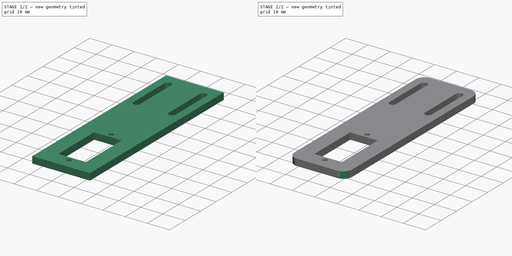
[diagram: build sequence overview — one tinted view per stage of 2, left to right]
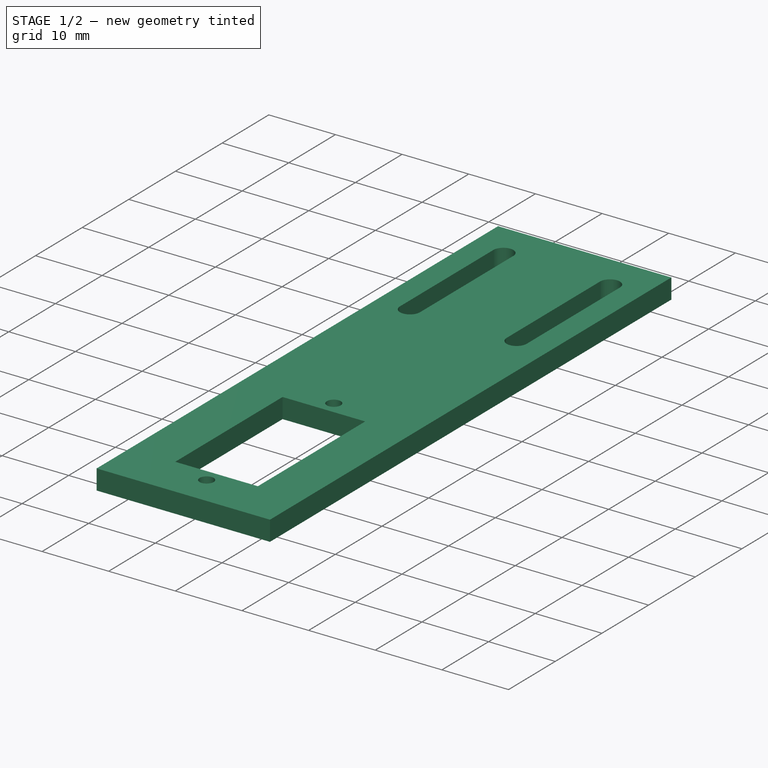
[diagram: stage 1 of 2 — iso view after this stage's code; geometry added in this stage tinted green]
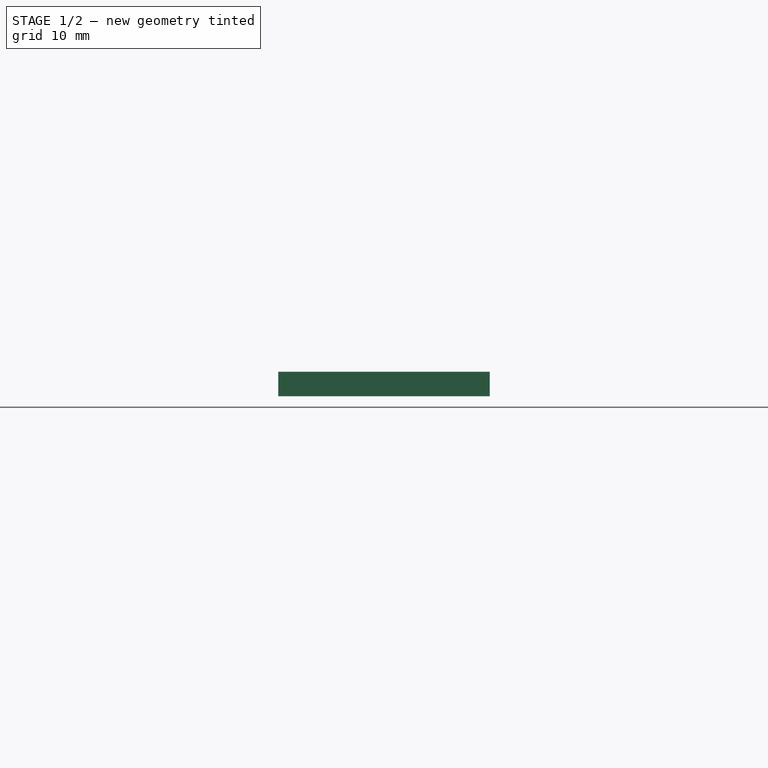
[diagram: stage 1 of 2 — front view after this stage's code; geometry added in this stage tinted green]
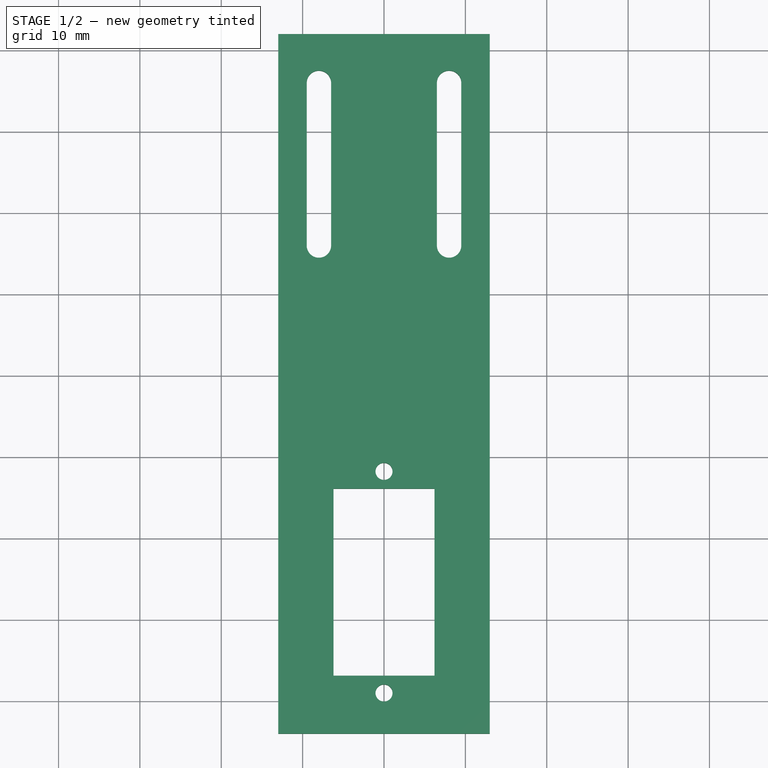
[diagram: stage 1 of 2 — top view after this stage's code; geometry added in this stage tinted green]
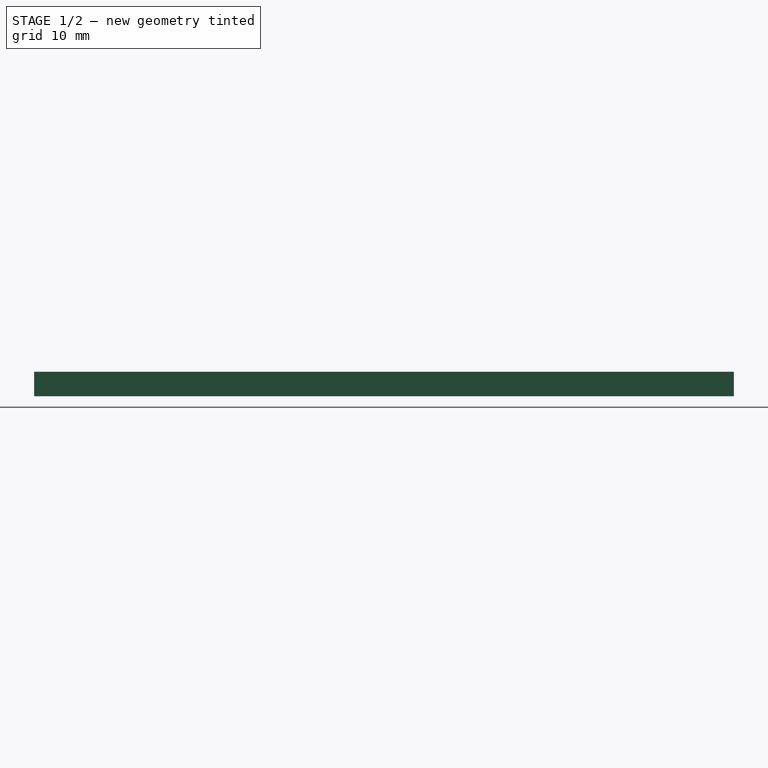
[diagram: stage 1 of 2 — right view after this stage's code; geometry added in this stage tinted green]
FCSTD DOCUMENT  (FreeCAD 0.18R16117 (Git))
Label: BaseJoint
License: All rights reserved
LicenseURL: http://en.wikipedia.org/wiki/All_rights_reserved
objects: Sketcher::SketchObject×1, PartDesign::Pad×1, PartDesign::Fillet×1, PartDesign::Body×1
note: 5 computed .brp shape members not serialized (recipe doc carries the construction recipe); baked Part::Feature solids carry a one-line shape summary decoded from their .brp

FEATURE [Sketcher::SketchObject] Sketch
  MapMode = 5
  Support = -> [XY_Plane]
  sketch-geometry (22):
    g0: LineSegment StartX=13 StartY=-50 StartZ=0 EndX=13 EndY=-74 EndZ=0
    g1: LineSegment StartX=13 StartY=-74 StartZ=0 EndX=-13 EndY=-74 EndZ=0
    g2: LineSegment StartX=-13 StartY=-74 StartZ=0 EndX=-13 EndY=-50 EndZ=0
    g3: LineSegment StartX=-13 StartY=12 StartZ=0 EndX=13 EndY=12 EndZ=0
    g4: LineSegment StartX=13 StartY=12 StartZ=0 EndX=13 EndY=-20 EndZ=0
    g5: LineSegment StartX=-13 StartY=-20 StartZ=0 EndX=-13 EndY=12 EndZ=0
    g6: LineSegment StartX=-6.2 StartY=-43.88 StartZ=0 EndX=6.2 EndY=-43.88 EndZ=0
    g7: LineSegment StartX=6.2 StartY=-43.88 StartZ=0 EndX=6.2 EndY=-66.88 EndZ=0
    g8: LineSegment StartX=6.2 StartY=-66.88 StartZ=0 EndX=-6.2 EndY=-66.88 EndZ=0
    g9: LineSegment StartX=-6.2 StartY=-66.88 StartZ=0 EndX=-6.2 EndY=-43.88 EndZ=0
    g10: Circle CenterX=0 CenterY=-41.76 CenterZ=0 NormalX=0 NormalY=0 NormalZ=1 AngleXU=0 Radius=1.05
    g11: LineSegment StartX=-13 StartY=-50 StartZ=0 EndX=-13 EndY=-20 EndZ=0
    g12: LineSegment StartX=13 StartY=-50 StartZ=0 EndX=13 EndY=-20 EndZ=0
    g13: Circle CenterX=0 CenterY=-69 CenterZ=0 NormalX=0 NormalY=0 NormalZ=1 AngleXU=0 Radius=1.05
    g14: ArcOfCircle CenterX=-8 CenterY=6 CenterZ=0 NormalX=0 NormalY=0 NormalZ=1 AngleXU=0 Radius=1.5 StartAngle=0 EndAngle=3.14159
    g15: ArcOfCircle CenterX=-8 CenterY=-14 CenterZ=0 NormalX=0 NormalY=0 NormalZ=1 AngleXU=0 Radius=1.5 StartAngle=3.14159 EndAngle=6.28319
    g16: LineSegment StartX=-9.5 StartY=6 StartZ=0 EndX=-9.5 EndY=-14 EndZ=0
    g17: LineSegment StartX=-6.5 StartY=6 StartZ=0 EndX=-6.5 EndY=-14 EndZ=0
    g18: ArcOfCircle CenterX=8 CenterY=6 CenterZ=0 NormalX=0 NormalY=0 NormalZ=1 AngleXU=0 Radius=1.5 StartAngle=0 EndAngle=3.14159
    g19: ArcOfCircle CenterX=8 CenterY=-14 CenterZ=0 NormalX=0 NormalY=0 NormalZ=1 AngleXU=0 Radius=1.5 StartAngle=3.14159 EndAngle=6.28319
    g20: LineSegment StartX=6.5 StartY=6 StartZ=0 EndX=6.5 EndY=-14 EndZ=0
    g21: LineSegment StartX=9.5 StartY=6 StartZ=0 EndX=9.5 EndY=-14 EndZ=0
  constraints (58):
    c: Coincident(g0,g1)
    c: Coincident(g1,g2)
    c: Horizontal(g1)
    c: Vertical(g0)
    c: Symmetric(g2,g0,g-2)
    c: Vertical(g2)
    c: Coincident(g3,g4)
    c: Coincident(g5,g3)
    c: Vertical(g4)
    c: Symmetric(g3,g3,g-2)
    c: DistanceY(g-1,g3) = 12
    c: DistanceX(g3,g3) = 26
    c: Coincident(g6,g7)
    c: Coincident(g7,g8)
    c: Coincident(g8,g9)
    c: Coincident(g9,g6)
    c: Horizontal(g6)
    c: Horizontal(g8)
    c: Vertical(g9)
    c: Diameter(g10) = 2.1
    c: DistanceX(g8,g8) = 12.4
    c: DistanceY(g9,g9) = 23
    c: DistanceX(g1,g1) = 26
    c: DistanceY(g1,g-1) = 74
    c: Coincident(g11,g2)
    c: Coincident(g12,g0)
    c: Coincident(g12,g4)
    c: Symmetric(g4,g5,g-2)
    c: Coincident(g5,g11)
    c: DistanceY(g4,g4) = 32
    c: DistanceY(g2,g2) = 24
    c: Vertical(g7)
    c: Equal(g10,g13) = 2.1
    c: Vertical(g10,g13)
    c: DistanceX(g8,g13) = 6.2
    c: DistanceY(g13,g10) = 27.24
    c: DistanceY(g13,g7) = 2.12
    c: PointOnObject(g13,g-2)
    c: DistanceY(g0,g13) = 5
    c: Tangent(g14,g17) = 1.5708
    c: Tangent(g14,g16) = -1.5708
    c: Tangent(g16,g15) = -1.5708
    c: Tangent(g17,g15) = 1.5708
    c: Vertical(g16)
    c: Equal(g14,g15)
    c: Tangent(g18,g21) = 1.5708
    c: Tangent(g18,g20) = -1.5708
    c: Tangent(g20,g19) = -1.5708
    c: Tangent(g21,g19) = 1.5708
    c: Vertical(g20)
    c: Equal(g18,g19)
    c: Symmetric(g14,g18,g-2)
    c: Equal(g14,g18)
    c: Diameter(g18) = 3
    c: DistanceX(g14,g18) = 16
    c: Horizontal(g15,g19)
    c: DistanceY(g14,g3) = 6
    c: DistanceY(g16,g16) = 20
FEATURE [PartDesign::Pad] Pad
  Length = 3
  Length2 = 100
  Profile = -> Sketch
  Type = 0
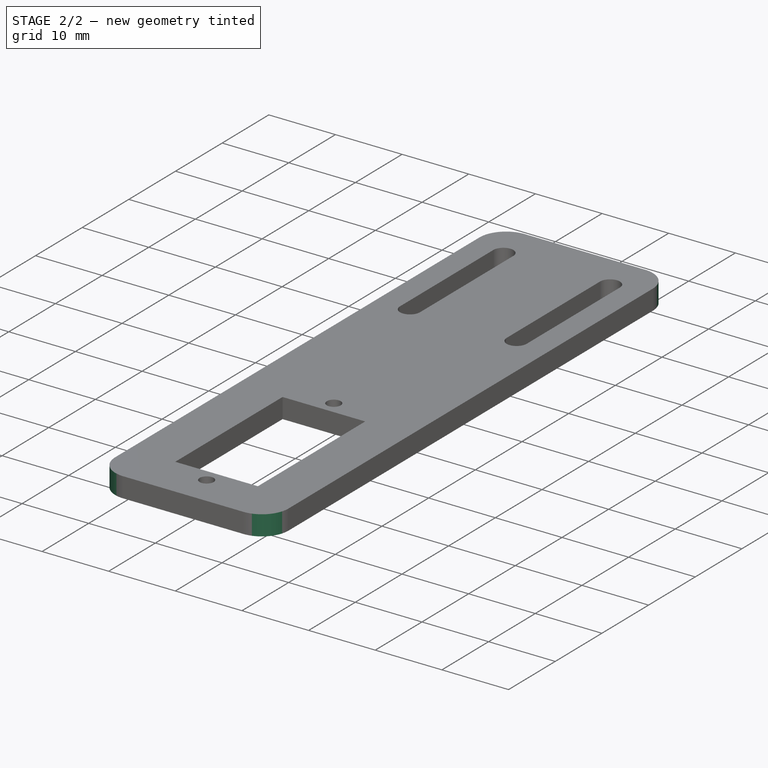
[diagram: stage 2 of 2 — iso view after this stage's code; geometry added in this stage tinted green]
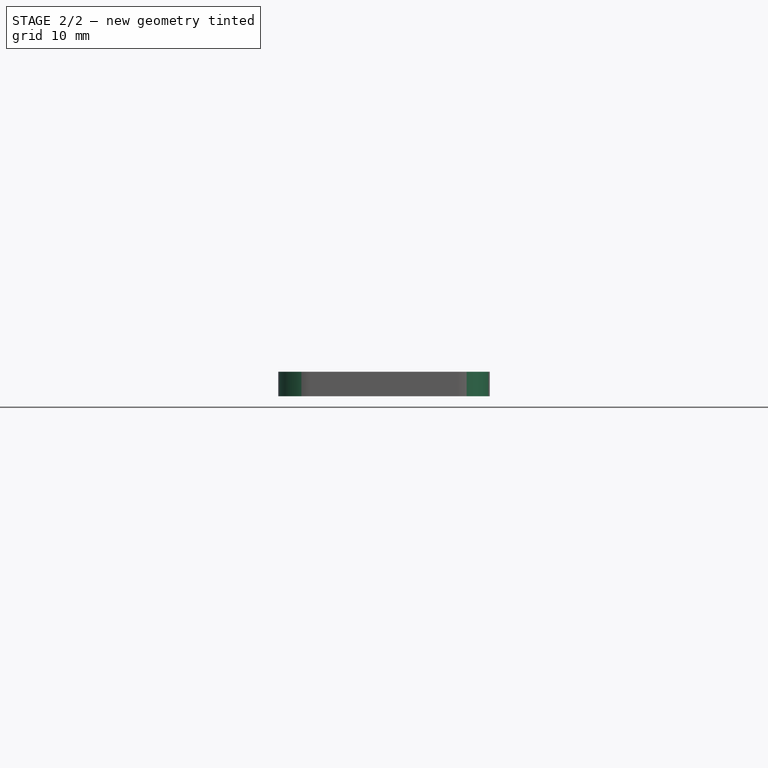
[diagram: stage 2 of 2 — front view after this stage's code; geometry added in this stage tinted green]
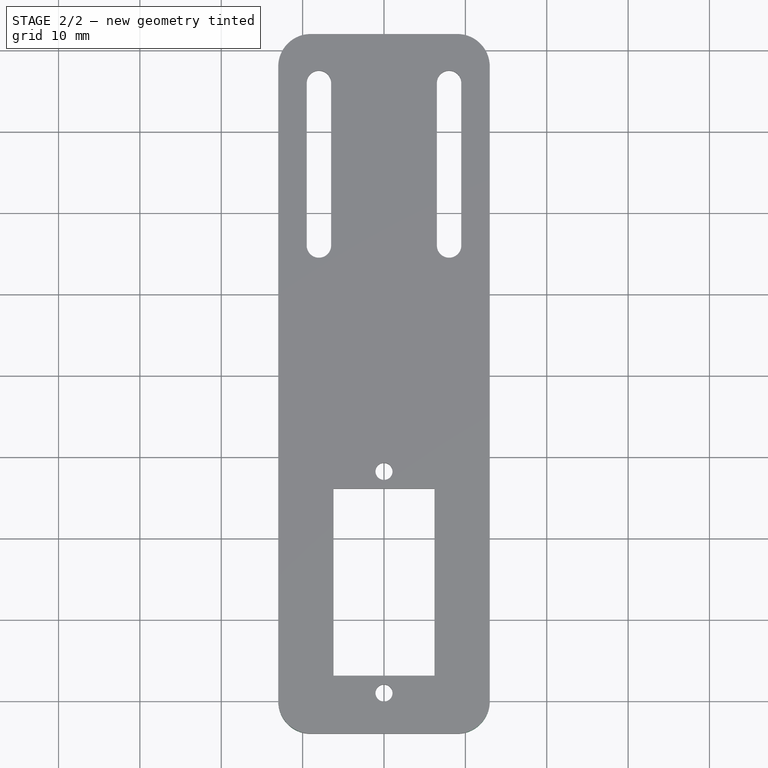
[diagram: stage 2 of 2 — top view after this stage's code; geometry added in this stage tinted green]
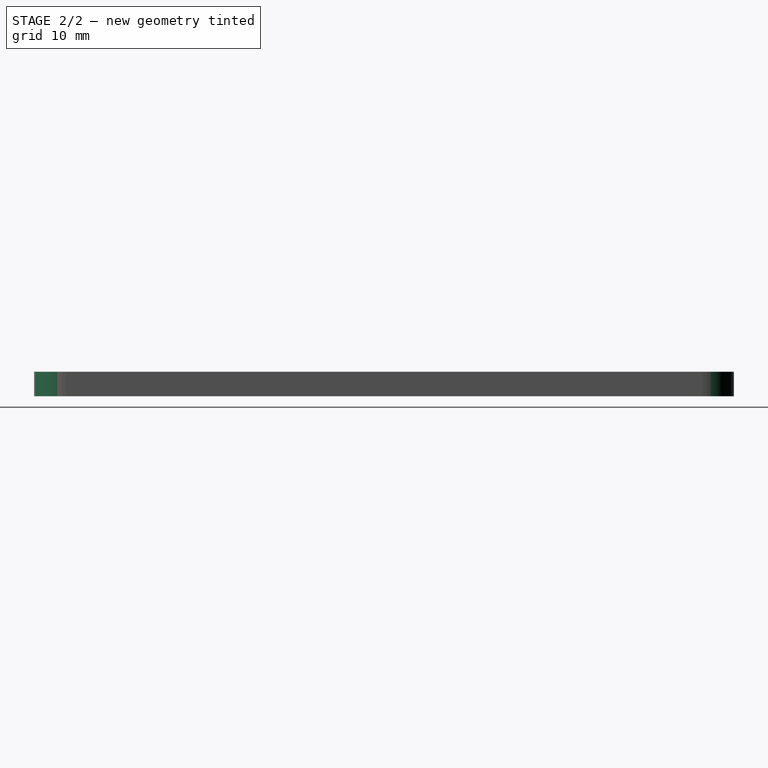
[diagram: stage 2 of 2 — right view after this stage's code; geometry added in this stage tinted green]
FEATURE [PartDesign::Fillet] Fillet
  Base = -> Pad [Edge2,Edge5,Edge17,Edge14]
  BaseFeature = -> Pad
  Radius = 4
FEATURE [PartDesign::Body] Body
  Group = -> [Sketch,Pad,Fillet]
  Origin = -> Origin
  Tip = -> Fillet
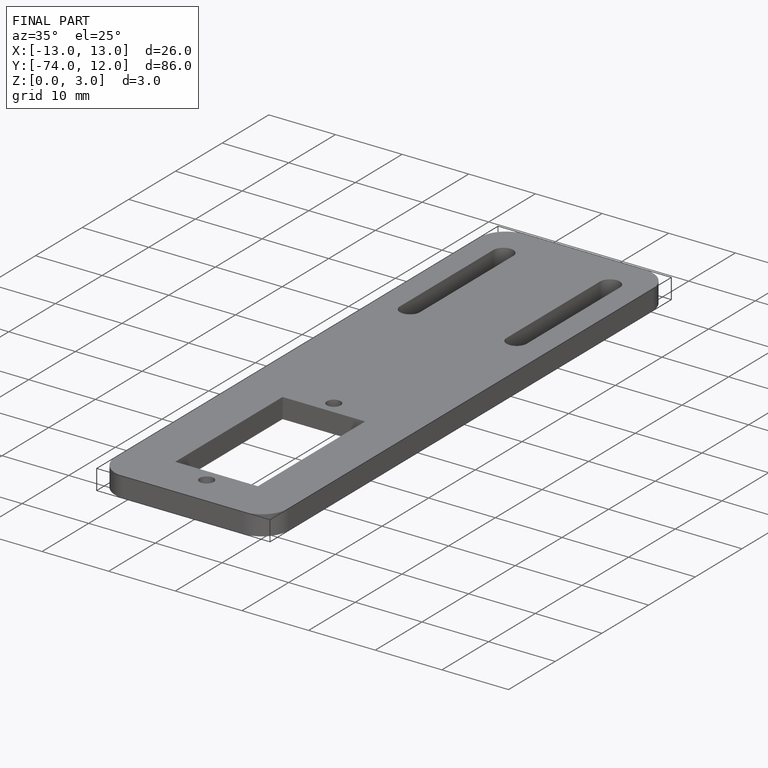
[diagram: finished part — iso view with bounding-box wireframe]
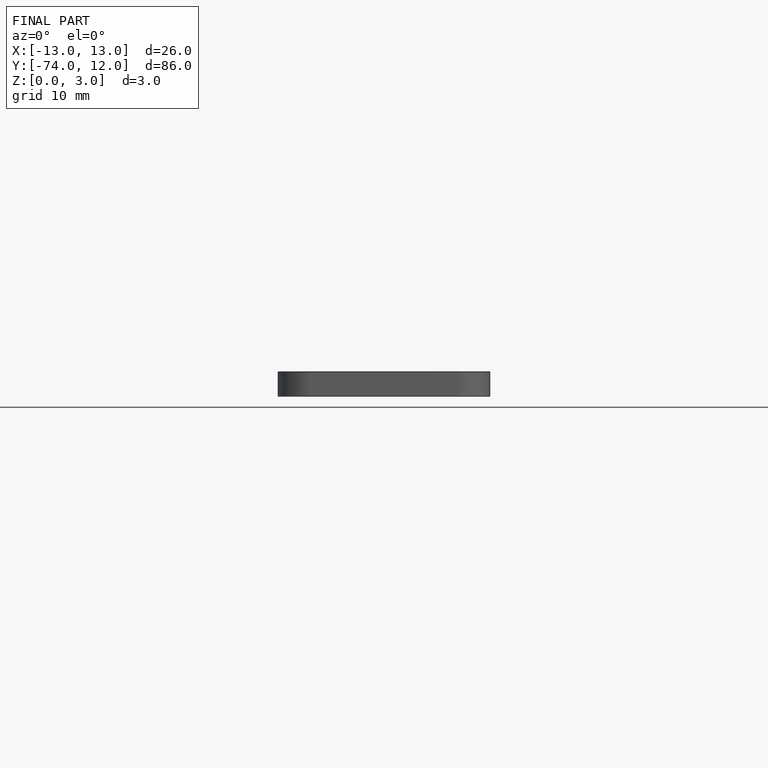
[diagram: finished part — front view with bounding-box wireframe]
